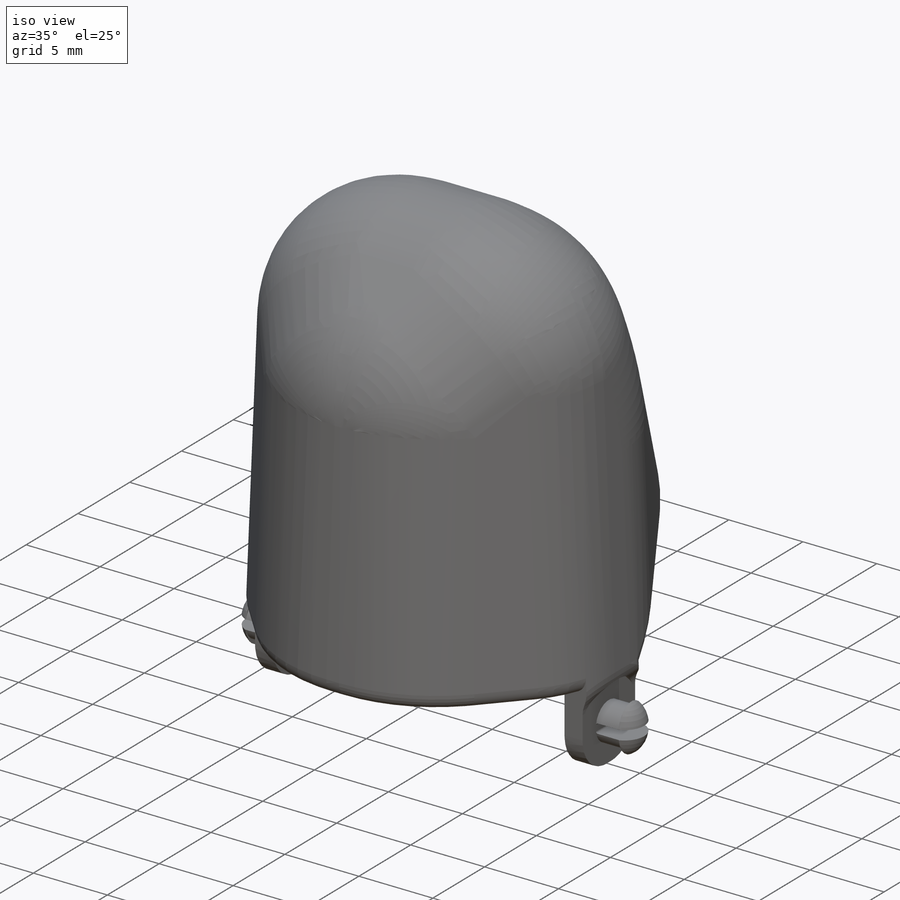
[diagram: iso view]
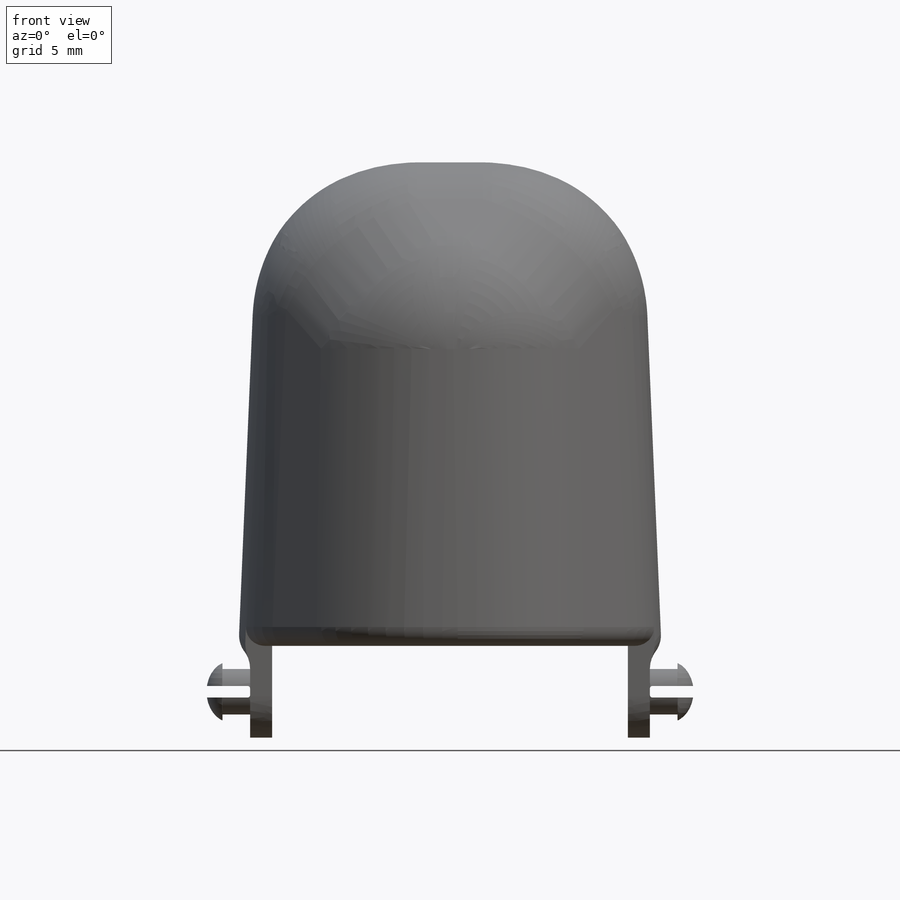
[diagram: front view]
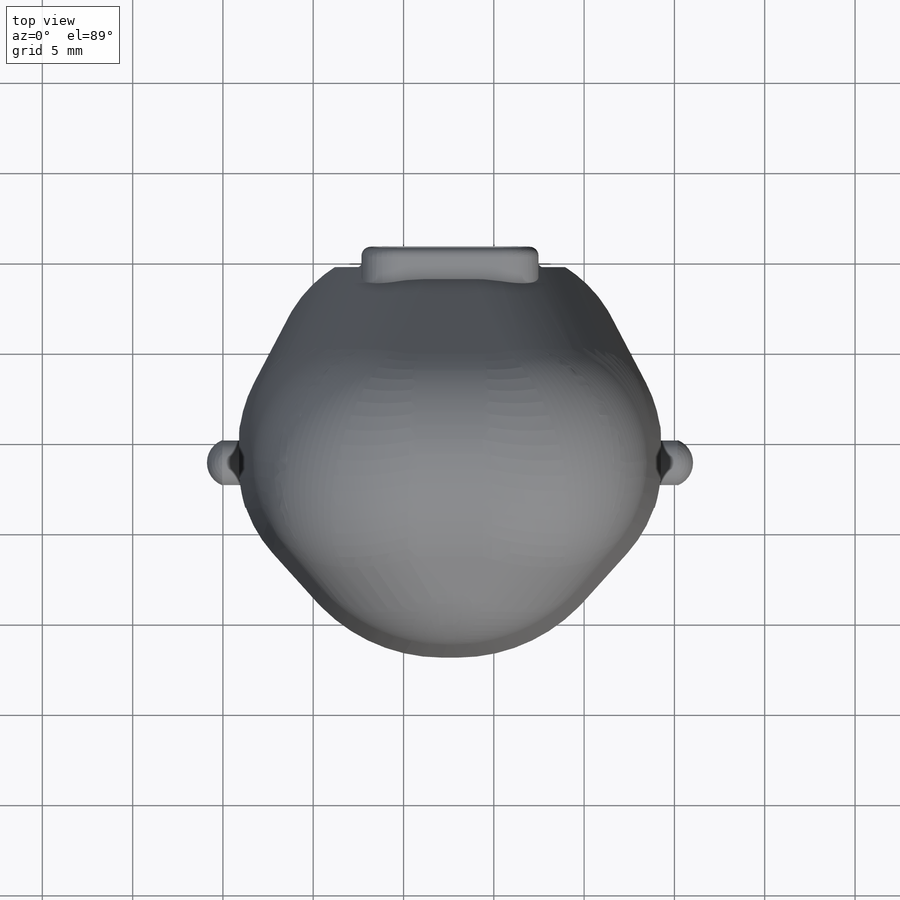
[diagram: top view]
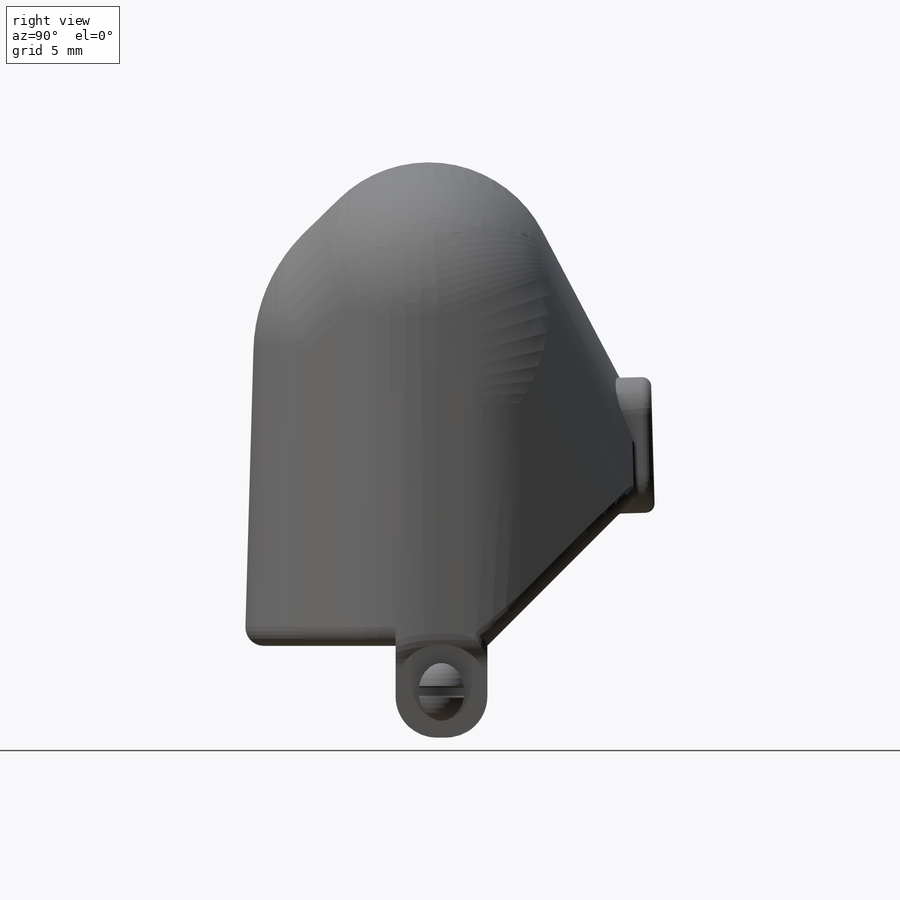
[diagram: right view]
SOLIDWORKS PART (.sldprt)
format: sldprt  version: not decoded by parser v0  size: 2,775,040 bytes
history: native  units: mm
features: sketch x29, fillet x20, cut_extrude x19, extrude x6, material x1, plane x1, shell x1, dome x1, mirror x1 (+16 scaffold rows collapsed)
feature tree (95):
  scaffold x16  (default folders/planes/origin — collapsed)
  material  "Material <not specified>"
  sketch  "Sketch1"  dims[c1.D4=2.3368mm c1.D3=5.08mm c1.D1=~40.198806mm c1.D6=25.146mm c1.D2=~22.826773mm c2.D3=8.7249mm c2.D5=2.54mm c2.D6=5.08mm c2.D1=~16.941553mm c2.D2=~9.592816mm c3.D3=5.08mm c3.D5=~11.590291mm c3.bWidthz=25.4mm]
  sketch  "Sketch2"  dims[c1.D1=~52.675108mm c1.D3=63.5mm c2.D1=~66.29374mm c2.D2=~11.048957mm c2.heightz=~66.29374mm]
  plane  "Plane3"
  sketch  "Sketch7"  dims[c1.D4=2.3368mm c1.D3=5.08mm c1.D1=~40.198806mm c1.D6=19.7358mm c1.D2=~22.826773mm c2.D3=8.7249mm c2.D5=2.54mm c2.D6=5.08mm c2.D1=~13.214412mm c2.D2=~7.482396mm c3.D3=5.08mm c3.D5=~9.040427mm c3.widthz=19.812mm]
  sketch  "Sketch8"  dims[c1.D1=~21.166667mm c1.D2=~21.98472mm c2.D2=45.0deg c2.D3=~11.680502mm c3.D3=45.0deg c3.D4=~12.642562mm c4.D4=45.0deg c4.D2=63.5mm c4.D3=69.85mm c5.D4=~26.458333mm c5.D1=63.5mm c5.D2=69.85mm]
  cut_extrude  "Cut-Extrude2"  [1 undecoded]
  sketch  "Sketch9"
  sketch  "Sketch11"  dims[c1.D1=19.05mm c1.D2=~18.996599mm c2.D1=19.05mm c2.D2=19.05mm c2.D3=12.7mm]
  cut_extrude  "Cut-Extrude3"  [1 undecoded]
  sketch  "Sketch12"
  extrude  "Boss-Extrude1"  Depth=5.08mm
  sketch  "Sketch13"  dims[D1=2.54mm]
  cut_extrude  "Cut-Extrude4"  [1 undecoded]
  fillet  "Fillet1"  Radius=2.286mm
  sketch  "Sketch14"
  extrude  "Boss-Extrude2"  Depth=12.7mm
  sketch  "Sketch15"
  cut_extrude  "Cut-Extrude5"  [1 undecoded]
  sketch  "Sketch16"
  cut_extrude  "Cut-Extrude6"  [1 undecoded]
  sketch  "Sketch17"
  cut_extrude  "Cut-Extrude7"  [1 undecoded]
  sketch  "Sketch18"
  cut_extrude  "Cut-Extrude8"  [1 undecoded]
  sketch  "Sketch19"
  cut_extrude  "Cut-Extrude9"  [1 undecoded]
  sketch  "Sketch20"
  cut_extrude  "Cut-Extrude10"  [1 undecoded]
  sketch  "Sketch21"
  cut_extrude  "Cut-Extrude11"  [1 undecoded]
  sketch  "Sketch22"  dims[D1=12.7mm D2=12.7mm D3=12.7mm]
  cut_extrude  "Cut-Extrude14"  [1 undecoded]
  fillet  "Fillet3"  Radius=8.128mm
  fillet  "Fillet4"  Radius=7.62mm
  fillet  "Fillet5"  Radius=5.08mm
  shell  "Shell3"  Thickness=1.27mm
  fillet  "Fillet7"  Radius=1.016mm
  fillet  "Fillet8"  Radius=1.016mm
  sketch  "Sketch24"
  cut_extrude  "Cut-Extrude15"  Depth=20.5486mm
  sketch  "Sketch26"
  extrude  "Boss-Extrude4"  Depth=1.524mm
  sketch  "Sketch27"  dims[D1=0.3175mm]
  extrude  "Boss-Extrude5"  Depth=0.0254mm
  dome  "Dome1"
  sketch  "Sketch28"  dims[D1=0.635mm]
  cut_extrude  "Cut-Extrude16"  [1 undecoded]
  fillet  "Fillet9"  Radius=1.524mm
  fillet  "Fillet10"  Radius=1.524mm
  sketch  "Sketch30"
  cut_extrude  "Cut-Extrude17"  [1 undecoded]
  sketch  "Sketch31"  dims[D1=~91.69374mm]
  cut_extrude  "Cut-Extrude19"  [1 undecoded]
  sketch  "Sketch33"  dims[D1=0.0mm]
  extrude  "Boss-Extrude6"  Depth=0.5842mm
  fillet  "Fillet31"  Radius=0.508mm
  fillet  "Fillet30"  Radius=0.508mm
  mirror  "Mirror1"
  sketch  "Sketch35"  dims[D1=9.8044mm D2=7.5184mm]
  extrude  "Boss-Extrude7"  Depth=3.556mm
  sketch  "Sketch36"  dims[D1=1.651mm]
  cut_extrude  "Cut-Extrude22"  Depth=1.016mm
  sketch  "Sketch37"  dims[D1=0.635mm]
  cut_extrude  "Cut-Extrude23"  Depth=0.508mm
  fillet  "Fillet18"  Radius=2.032mm
  fillet  "Fillet19"  Radius=1.524mm
  sketch  "Sketch38"  dims[D1=5.0038mm]
  cut_extrude  "Cut-Extrude24"  [1 undecoded]
  sketch  "Sketch39"  dims[D1=2.032mm D2=3.81mm]
  cut_extrude  "Cut-Extrude25"  Depth=1.778mm
  fillet  "Fillet22"  Radius=0.762mm
  fillet  "Fillet23"  Radius=0.254mm
  fillet  "Fillet24"  Radius=0.508mm
  fillet  "Fillet25"  Radius=0.762mm
  fillet  "Fillet27"  Radius=0.508mm
  fillet  "Fillet29"  Radius=0.127mm
  fillet  "Fillet32"  Radius=0.762mm
  fillet  "Fillet33"  Radius=0.4572mm Height=63.5mm sectionWidth=25.146mm sectionWidth2=19.7358mm Thickness=0.0254mm
decode coverage: 47 of 77 modeling features carry decoded parameters
note: ~ marks probable driven/reference dimensions
note: 15 parameter values undecoded
summary: no parameter record found for 15 features
note: suppression state not decoded; provenance and decode notes live in map.json
